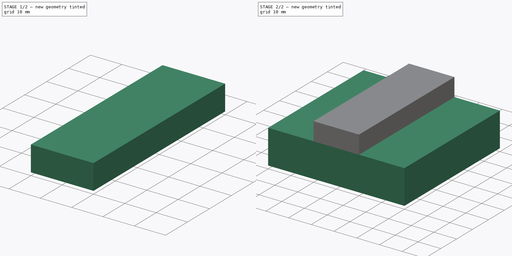
[diagram: build sequence overview — one tinted view per stage of 2, left to right]
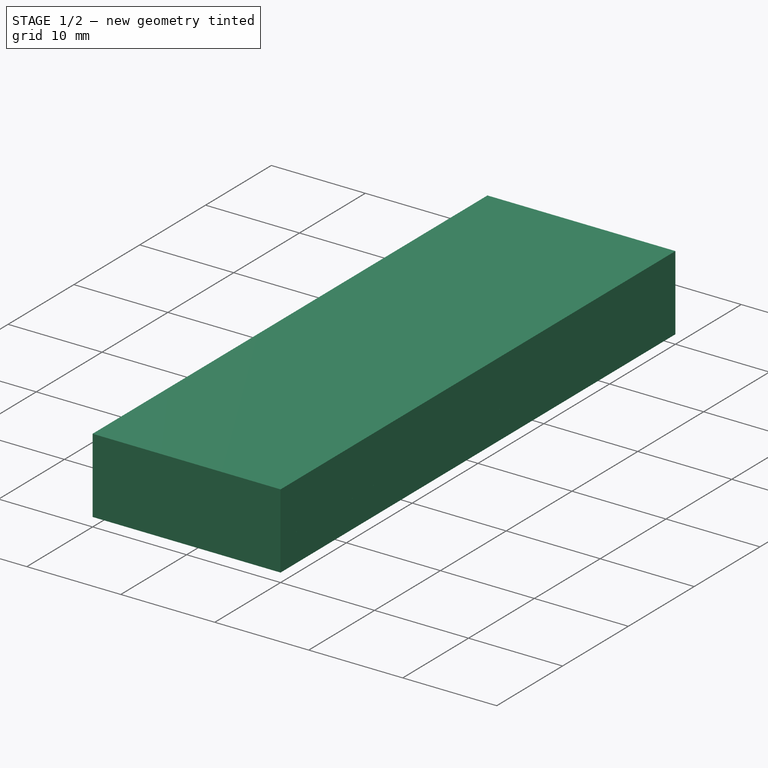
[diagram: stage 1 of 2 — iso view after this stage's code; geometry added in this stage tinted green]
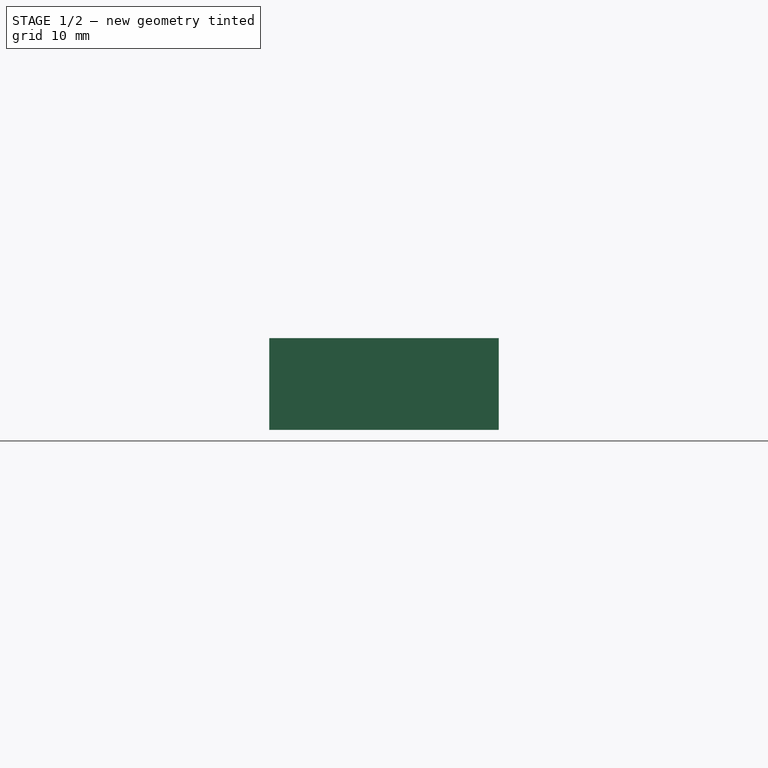
[diagram: stage 1 of 2 — front view after this stage's code; geometry added in this stage tinted green]
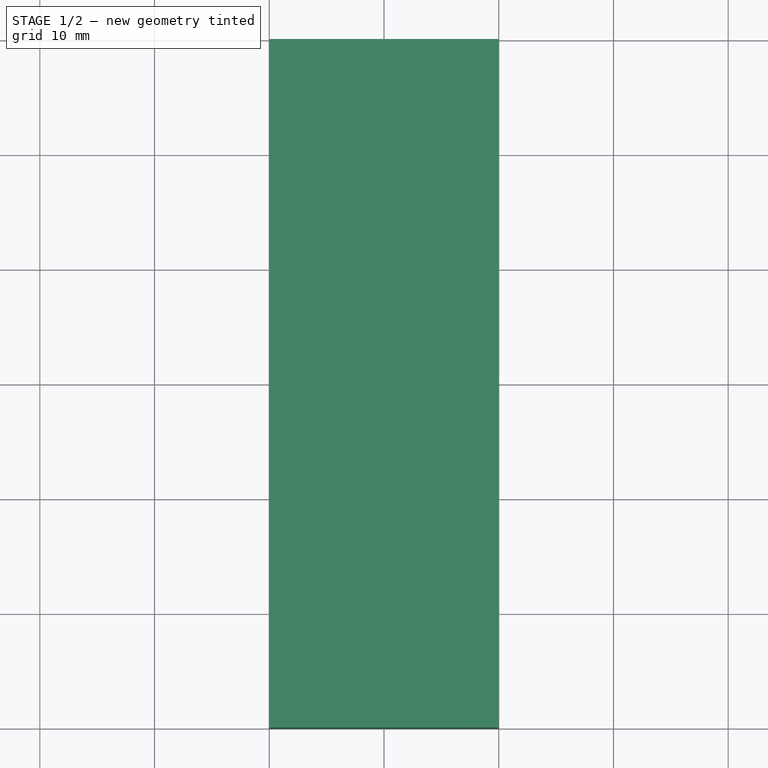
[diagram: stage 1 of 2 — top view after this stage's code; geometry added in this stage tinted green]
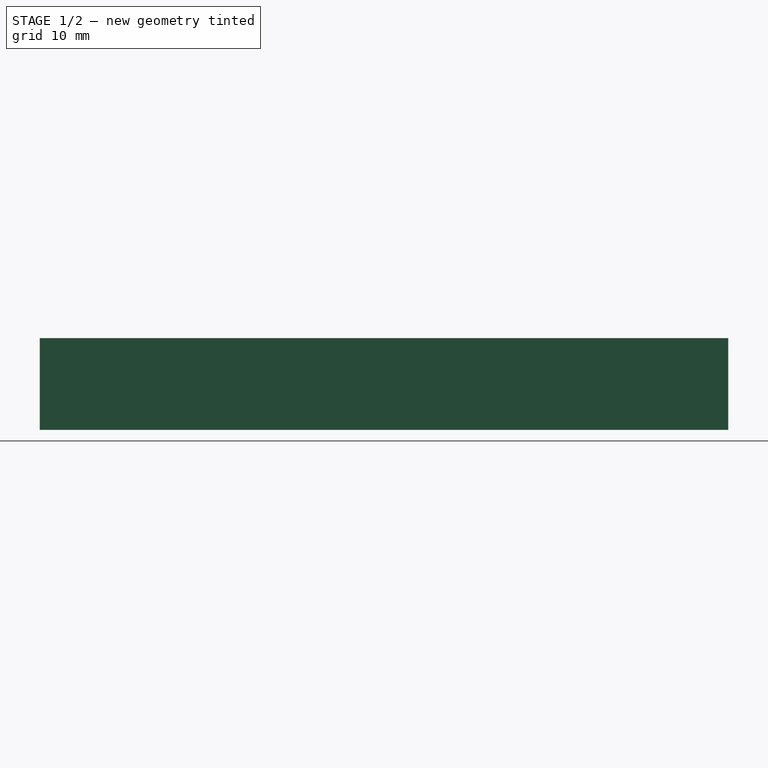
[diagram: stage 1 of 2 — right view after this stage's code; geometry added in this stage tinted green]
FCSTD DOCUMENT  (FreeCAD 0.16R6707 (Git))
Label: mosfet-si
License: All rights reserved
LicenseURL: http://en.wikipedia.org/wiki/All_rights_reserved
objects: Part::Part2DObjectPython×5, Sketcher::SketchObject×4, PartDesign::Pad×4
note: 17 computed .brp shape members not serialized (recipe doc carries the construction recipe); baked Part::Feature solids carry a one-line shape summary decoded from their .brp

FEATURE [Sketcher::SketchObject] Sketch002  label="oxide-film-sketch"
  Placement = pos=(0,0,15) rot=(0,0,1;0rad)
  sketch-geometry (4):
    g0: LineSegment StartX=-10 StartY=30 StartZ=0 EndX=10 EndY=30 EndZ=0
    g1: LineSegment StartX=10 StartY=30 StartZ=0 EndX=10 EndY=-30 EndZ=0
    g2: LineSegment StartX=10 StartY=-30 StartZ=0 EndX=-10 EndY=-30 EndZ=0
    g3: LineSegment StartX=-10 StartY=-30 StartZ=0 EndX=-10 EndY=30 EndZ=0
  constraints (11):
    c: Coincident(g0,g1)
    c: Coincident(g1,g2)
    c: Coincident(g2,g3)
    c: Coincident(g3,g0)
    c: Horizontal(g0)
    c: Horizontal(g2)
    c: Vertical(g1)
    c: Vertical(g3)
    c: Symmetric(g0,g1,g-1)
    c: DistanceX(g0,g0) = 20
    c: DistanceY(g1,g1) = 60
FEATURE [PartDesign::Pad] Pad002  label="oxide-film"
  Length = 3
  Length2 = 100
  Placement = pos=(0,0,15) rot=(0,0,1;0rad)
  Sketch = -> Sketch002
  Type = 0
FEATURE [Sketcher::SketchObject] Sketch003  label="metal-gate-sketch"
  Placement = pos=(0,0,18) rot=(0,0,1;0rad)
  sketch-geometry (4):
    g0: LineSegment StartX=-10 StartY=30 StartZ=0 EndX=10 EndY=30 EndZ=0
    g1: LineSegment StartX=10 StartY=30 StartZ=0 EndX=10 EndY=-30 EndZ=0
    g2: LineSegment StartX=10 StartY=-30 StartZ=0 EndX=-10 EndY=-30 EndZ=0
    g3: LineSegment StartX=-10 StartY=-30 StartZ=0 EndX=-10 EndY=30 EndZ=0
  constraints (11):
    c: Coincident(g0,g1)
    c: Coincident(g1,g2)
    c: Coincident(g2,g3)
    c: Coincident(g3,g0)
    c: Horizontal(g0)
    c: Horizontal(g2)
    c: Vertical(g1)
    c: Vertical(g3)
    c: Symmetric(g0,g1,g-1)
    c: DistanceX(g0,g0) = 20
    c: DistanceY(g1,g1) = 60
FEATURE [PartDesign::Pad] Pad003  label="Metal-gate"
  Length = 5
  Length2 = 100
  Placement = pos=(0,0,18) rot=(0,0,1;0rad)
  Sketch = -> Sketch003
  Type = 0
FEATURE [Part::Part2DObjectPython] ShapeString  label="Test-Type-P-si"  # Draft 2D object (typed FeaturePython)
  FontFile = <userpath>/develop/myslides/2017-05-05-Electronica-dig-divertica-FPGAs-libres-PEAC-IES-Juan-cierva/images/src/OpenSans-Bold.ttf
  Placement = pos=(-10.2588,-30.3,4.11379) rot=(1,0,0;1.5708rad)
  Size = 3
  String = Silicio Tipo P
  Tracking = 0
FEATURE [Part::Part2DObjectPython] ShapeString001  label="Test-Type-N-si"  # Draft 2D object (typed FeaturePython)
  FontFile = <userpath>/develop/myslides/2017-05-05-Electronica-dig-divertica-FPGAs-libres-PEAC-IES-Juan-cierva/images/src/OpenSans-Bold.ttf
  Placement = pos=(-27.5606,-30.3,11.846) rot=(1,0,0;1.5708rad)
  Size = 2
  String = Silicio Tipo N
  Tracking = 0
FEATURE [Part::Part2DObjectPython] ShapeString002  label="Test-Type-N-si001"  # Draft 2D object (typed FeaturePython)
  FontFile = <userpath>/develop/myslides/2017-05-05-Electronica-dig-divertica-FPGAs-libres-PEAC-IES-Juan-cierva/images/src/OpenSans-Bold.ttf
  Placement = pos=(13.4394,-30.3,11.846) rot=(1,0,0;1.5708rad)
  Size = 2
  String = Silicio Tipo N
  Tracking = 0
FEATURE [Part::Part2DObjectPython] ShapeString003  label="Text-oxide"  # Draft 2D object (typed FeaturePython)
  FontFile = <userpath>/develop/myslides/2017-05-05-Electronica-dig-divertica-FPGAs-libres-PEAC-IES-Juan-cierva/images/src/OpenSans-Bold.ttf
  Placement = pos=(-3.84455,-30.3,15.7238) rot=(1,0,0;1.5708rad)
  Size = 2
  String = Oxido
  Tracking = 0
FEATURE [Part::Part2DObjectPython] ShapeString004  label="Text-metal"  # Draft 2D object (typed FeaturePython)
  FontFile = <userpath>/develop/myslides/2017-05-05-Electronica-dig-divertica-FPGAs-libres-PEAC-IES-Juan-cierva/images/src/OpenSans-Bold.ttf
  Placement = pos=(-4.14695,-30.3,19.8489) rot=(1,0,0;1.5708rad)
  Size = 2
  String = Metal
  Tracking = 0
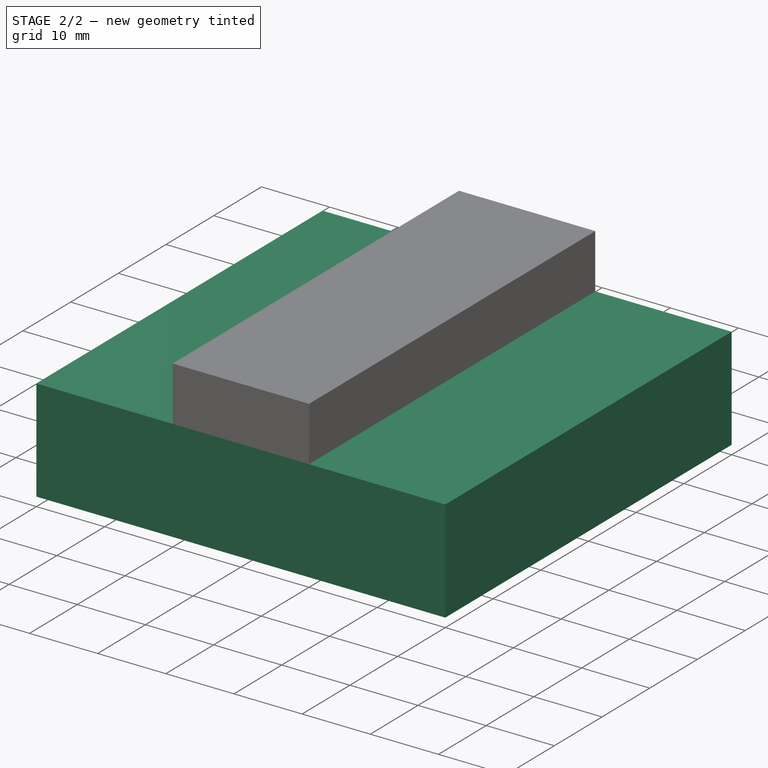
[diagram: stage 2 of 2 — iso view after this stage's code; geometry added in this stage tinted green]
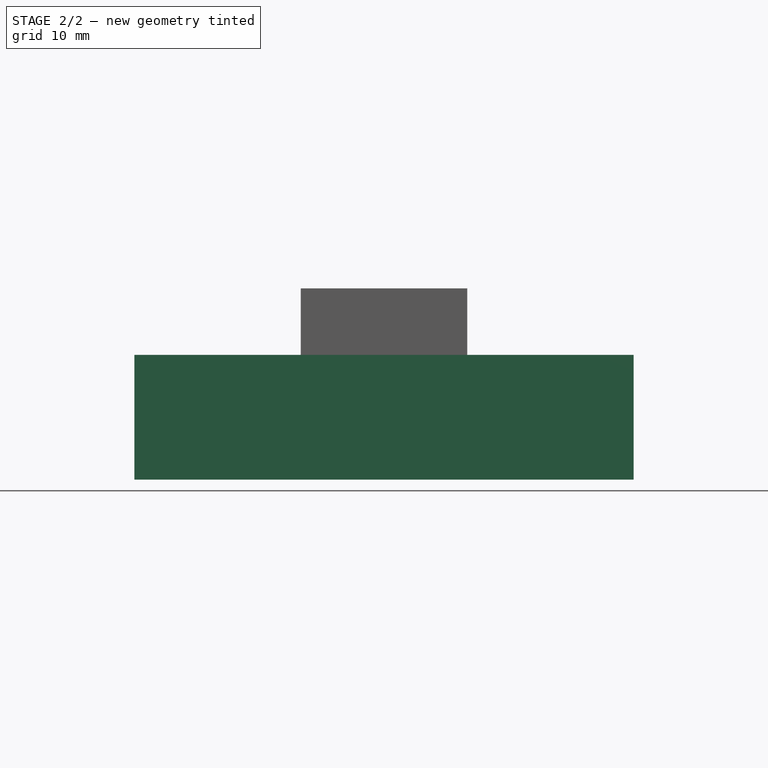
[diagram: stage 2 of 2 — front view after this stage's code; geometry added in this stage tinted green]
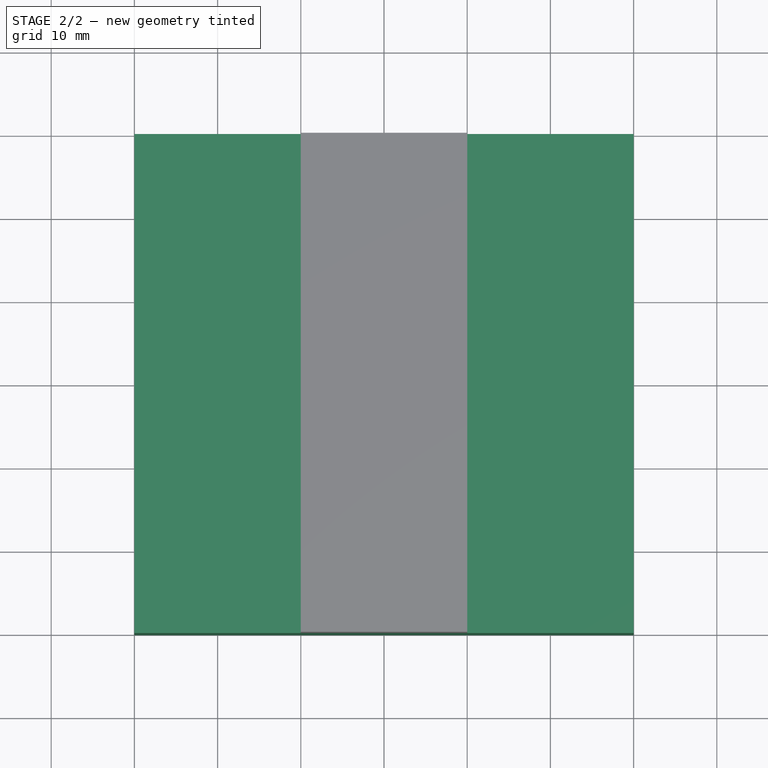
[diagram: stage 2 of 2 — top view after this stage's code; geometry added in this stage tinted green]
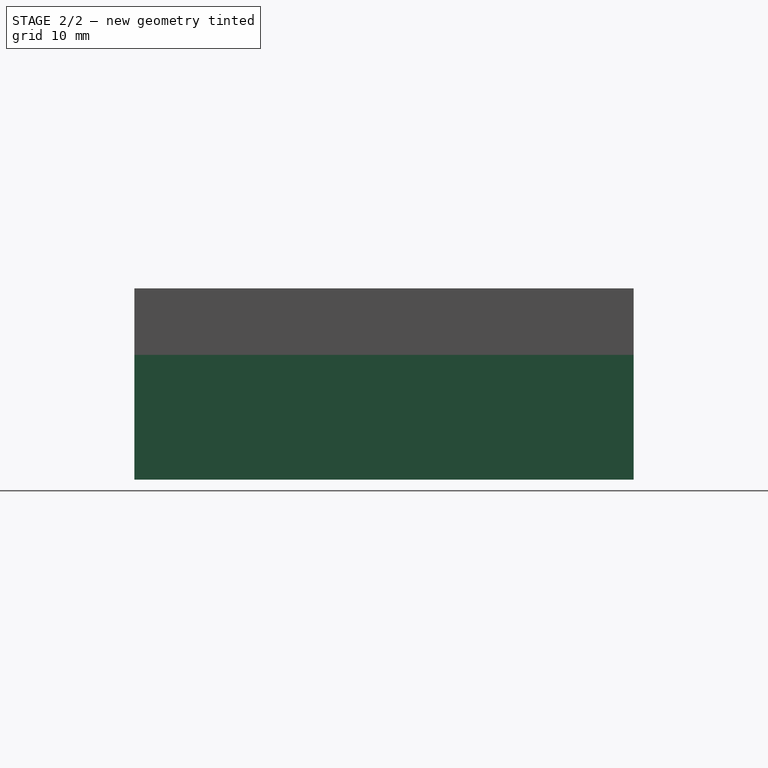
[diagram: stage 2 of 2 — right view after this stage's code; geometry added in this stage tinted green]
FEATURE [Sketcher::SketchObject] Sketch  label="p-type-si-sketch"
  Placement = pos=(0,0,0) rot=(-1,0,0;4.71239rad)
  sketch-geometry (8):
    g0: LineSegment StartX=-30 StartY=0 StartZ=0 EndX=-30 EndY=10 EndZ=0
    g1: LineSegment StartX=-30 StartY=10 StartZ=0 EndX=-10 EndY=10 EndZ=0
    g2: LineSegment StartX=-10 StartY=10 StartZ=0 EndX=-10 EndY=15 EndZ=0
    g3: LineSegment StartX=-10 StartY=15 StartZ=0 EndX=10 EndY=15 EndZ=0
    g4: LineSegment StartX=10 StartY=15 StartZ=0 EndX=10 EndY=10 EndZ=0
    g5: LineSegment StartX=10 StartY=10 StartZ=0 EndX=30 EndY=10 EndZ=0
    g6: LineSegment StartX=30 StartY=10 StartZ=0 EndX=30 EndY=0 EndZ=0
    g7: LineSegment StartX=30 StartY=0 StartZ=0 EndX=-30 EndY=0 EndZ=0
  constraints (24):
    c: Vertical(g0)
    c: Coincident(g0,g1)
    c: Horizontal(g1)
    c: Coincident(g1,g2)
    c: Vertical(g2)
    c: Coincident(g2,g3)
    c: Horizontal(g3)
    c: Coincident(g3,g4)
    c: Vertical(g4)
    c: Coincident(g4,g5)
    c: Horizontal(g5)
    c: Coincident(g5,g6)
    c: Vertical(g6)
    c: Coincident(g6,g7)
    c: Horizontal(g7)
    c: Coincident(g0,g7)
    c: PointOnObject(g0,g-1)
    c: PointOnObject(g4,g1)
    c: DistanceY(g0,g0) = 10
    c: DistanceX(g1,g1) = 20
    c: DistanceX(g3,g3) = 20
    c: Symmetric(g1,g4,g-2)
    c: DistanceY(g4,g4) = 5
    c: Symmetric(g0,g6,g-2)
FEATURE [PartDesign::Pad] Pad  label="p-type-si"
  Length = 60
  Length2 = 100
  Midplane = true
  Placement = pos=(0,0,0) rot=(-1,0,0;4.71239rad)
  Sketch = -> Sketch
  Type = 0
FEATURE [Sketcher::SketchObject] Sketch001  label="n-type-si-sketch"
  Placement = pos=(0,0,10) rot=(0,0,1;0rad)
  sketch-geometry (8):
    g0: LineSegment StartX=-30 StartY=30 StartZ=0 EndX=-10 EndY=30 EndZ=0
    g1: LineSegment StartX=-10 StartY=30 StartZ=0 EndX=-10 EndY=-30 EndZ=0
    g2: LineSegment StartX=-10 StartY=-30 StartZ=0 EndX=-30 EndY=-30 EndZ=0
    g3: LineSegment StartX=-30 StartY=-30 StartZ=0 EndX=-30 EndY=30 EndZ=0
    g4: LineSegment StartX=10 StartY=30 StartZ=0 EndX=30 EndY=30 EndZ=0
    g5: LineSegment StartX=30 StartY=30 StartZ=0 EndX=30 EndY=-30 EndZ=0
    g6: LineSegment StartX=30 StartY=-30 StartZ=0 EndX=10 EndY=-30 EndZ=0
    g7: LineSegment StartX=10 StartY=-30 StartZ=0 EndX=10 EndY=30 EndZ=0
  constraints (22):
    c: Coincident(g0,g1)
    c: Coincident(g1,g2)
    c: Coincident(g2,g3)
    c: Coincident(g3,g0)
    c: Horizontal(g0)
    c: Horizontal(g2)
    c: Vertical(g1)
    c: Vertical(g3)
    c: Symmetric(g0,g2,g-1)
    c: Coincident(g4,g5)
    c: Coincident(g5,g6)
    c: Coincident(g6,g7)
    c: Coincident(g7,g4)
    c: Horizontal(g4)
    c: Horizontal(g6)
    c: Vertical(g5)
    c: Vertical(g7)
    c: DistanceX(g0,g0) = 20
    c: DistanceY(g3,g3) = 60
    c: DistanceX(g0,g-1) = 10
    c: Symmetric(g4,g0,g-2)
    c: Symmetric(g5,g2,g-2)
FEATURE [PartDesign::Pad] Pad001  label="n-type-si"
  Length = 5
  Length2 = 100
  Placement = pos=(0,0,10) rot=(0,0,1;0rad)
  Sketch = -> Sketch001
  Type = 0
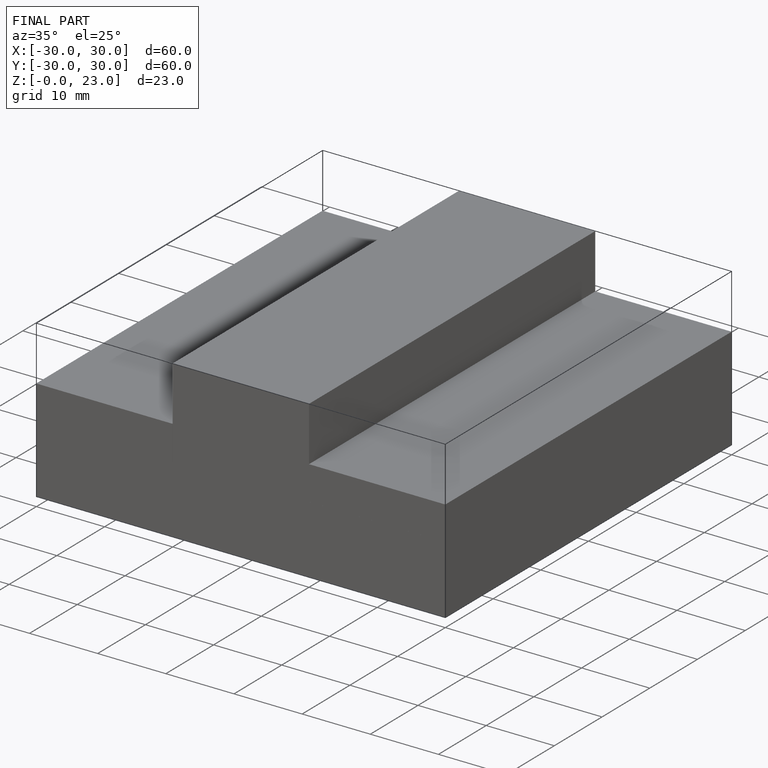
[diagram: finished part — iso view with bounding-box wireframe]
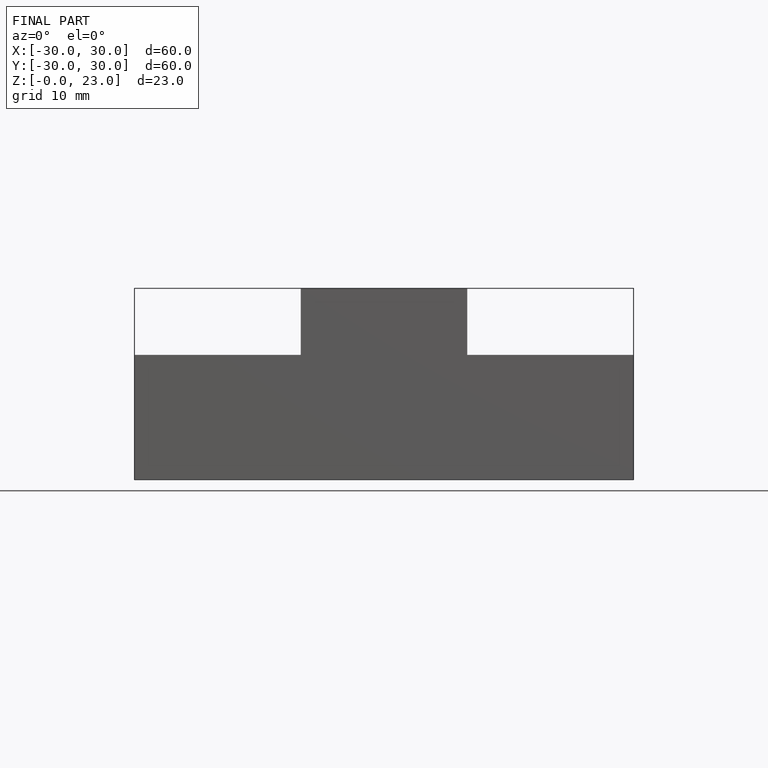
[diagram: finished part — front view with bounding-box wireframe]
